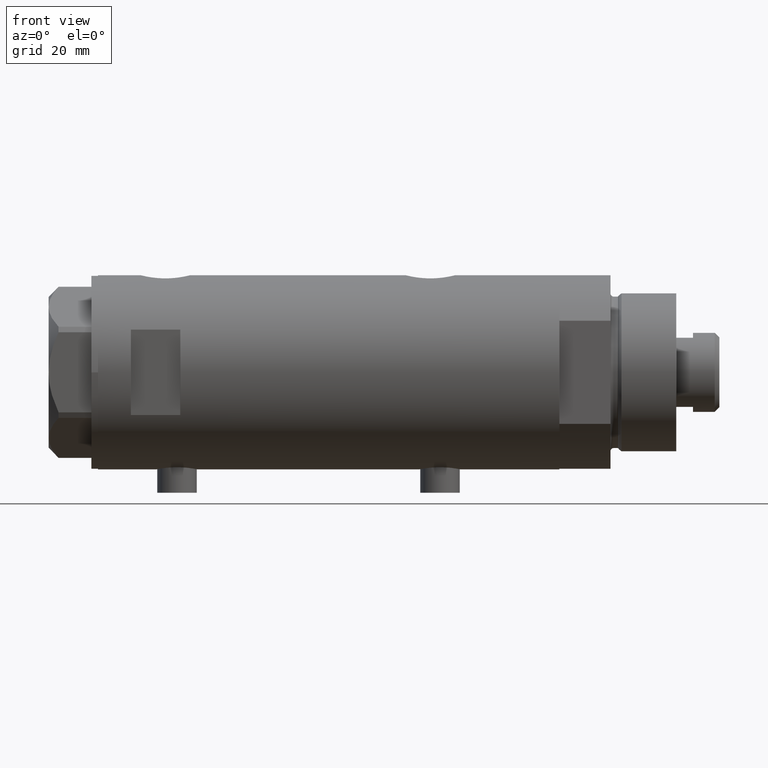
[diagram: clean part render]
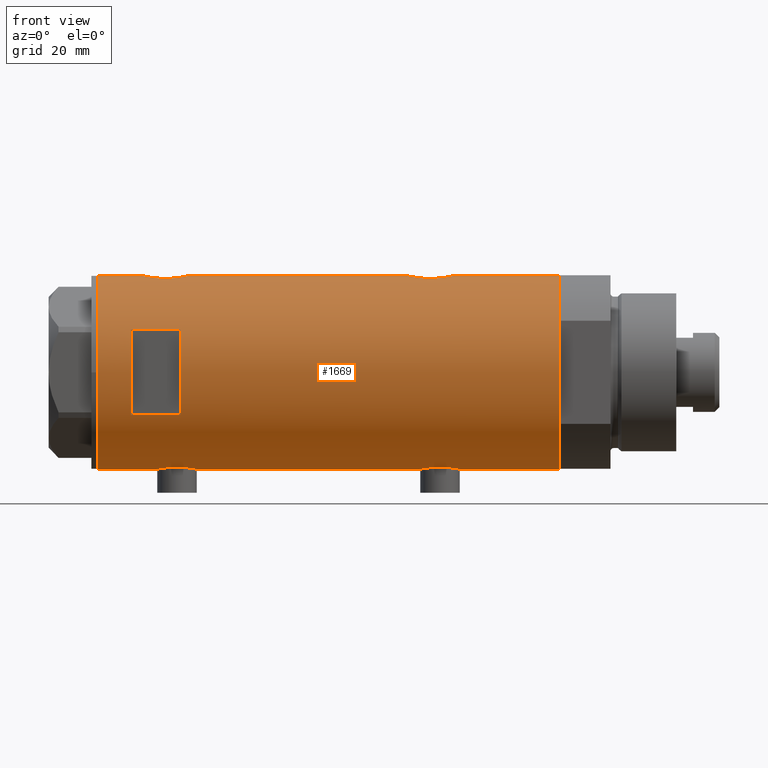
[diagram: same view with one face highlighted and labeled with its STEP entity id]
A machine part, front view. The second image highlights one B-rep face of the part: STEP entity #1669.
In plain terms, the highlighted cylindrical surface (partial cylindrical patch) has radius 29.5 mm, axis along (-1, -0, 0).
Its self-contained STEP definition (entity closure, byte-faithful):
#23 = CARTESIAN_POINT ( 'NONE',  ( 28.72151714661536204, -6.735173278284145582, 52.93640470570872480 ) ) ;
#80 = LINE ( 'NONE', #1499, #1151 ) ;
#95 = CARTESIAN_POINT ( 'NONE',  ( -29.50000000000000355, 3.612708057484692393E-15, 70.09999999999999432 ) ) ;
#108 = EDGE_CURVE ( 'NONE', #2811, #3958, #3994, .T. ) ;
#143 = CARTESIAN_POINT ( 'NONE',  ( 29.50000000000000355, -2.068661527048439545E-15, -38.39999999999999147 ) ) ;
#161 = VERTEX_POINT ( 'NONE', #2546 ) ;
#220 = FACE_BOUND ( 'NONE', #4718, .T. ) ;
#235 = DIRECTION ( 'NONE',  ( 0.000000000000000000, 0.000000000000000000, 1.000000000000000000 ) ) ;
#237 = CARTESIAN_POINT ( 'NONE',  ( 29.40378957563275009, -2.423455993307766398, 56.71449460115983499 ) ) ;
#285 = CARTESIAN_POINT ( 'NONE',  ( 29.17410189149616428, -4.377709617224021521, 43.50524172523978450 ) ) ;
#295 = CARTESIAN_POINT ( 'NONE',  ( -29.45797511864983065, -1.625450914296656890, -39.84905127530045377 ) ) ;
#307 = CARTESIAN_POINT ( 'NONE',  ( 28.72051071455671334, -6.739402597165489617, 46.27281026296244448 ) ) ;
#308 = EDGE_CURVE ( 'NONE', #4788, #461, #80, .T. ) ;
#320 = CARTESIAN_POINT ( 'NONE',  ( -29.14490888978862415, -4.565669626908225531, -29.52701820123783705 ) ) ;
#332 = CARTESIAN_POINT ( 'NONE',  ( 29.23250901027695647, -3.968959760999266617, 55.96846017287659691 ) ) ;
#341 = DIRECTION ( 'NONE',  ( 1.000000000000000000, 0.000000000000000000, 0.000000000000000000 ) ) ;
#344 = CARTESIAN_POINT ( 'NONE',  ( -29.50000000000001066, -0.4141077724969902119, -27.55000000000000071 ) ) ;
#355 = CARTESIAN_POINT ( 'NONE',  ( -29.50000000000000355, 3.612708057484692393E-15, -70.09999999999999432 ) ) ;
#359 = CARTESIAN_POINT ( 'NONE',  ( 29.14531914445117522, -4.579221598645967006, 55.55990232992807876 ) ) ;
#374 = CARTESIAN_POINT ( 'NONE',  ( -28.83260549167351883, -6.239494599049531409, -34.21615084301799214 ) ) ;
#386 = CARTESIAN_POINT ( 'NONE',  ( 29.14351131874355261, -4.576283785862462317, 43.65294675151479709 ) ) ;
#414 = CARTESIAN_POINT ( 'NONE',  ( -28.84137202824162216, -6.198846007008988579, -34.62388261123872724 ) ) ;
#426 = VECTOR ( 'NONE', #4122, 1000.000000000000000 ) ;
#461 = VERTEX_POINT ( 'NONE', #2663 ) ;
#476 = CARTESIAN_POINT ( 'NONE',  ( 28.86327882047615390, -6.097569254709687137, -26.52632909088550051 ) ) ;
#480 = DIRECTION ( 'NONE',  ( -0.000000000000000000, -0.000000000000000000, -1.000000000000000000 ) ) ;
#497 = CARTESIAN_POINT ( 'NONE',  ( 28.89374847711160399, -5.952001739005060799, -35.46983981079634418 ) ) ;
#513 = VERTEX_POINT ( 'NONE', #1012 ) ;
#515 = CARTESIAN_POINT ( 'NONE',  ( -28.96147498926091757, -5.613273026676365518, 43.32107301657420351 ) ) ;
#538 = CARTESIAN_POINT ( 'NONE',  ( -28.85437274499025762, -6.138402965889059537, 44.87243403294918664 ) ) ;
#546 = CARTESIAN_POINT ( 'NONE',  ( 29.43916859571211120, -1.954329820671501183, -38.15764479242086793 ) ) ;
#562 = CARTESIAN_POINT ( 'NONE',  ( 29.17410189149616428, -4.377709617224029515, -36.99475827476019418 ) ) ;
#580 = CARTESIAN_POINT ( 'NONE',  ( -29.50000000000000355, 3.612706708267620518E-15, 39.84999999999999432 ) ) ;
#598 = CARTESIAN_POINT ( 'NONE',  ( 29.50000000000001066, -0.4905639552620955079, 57.10000000000000142 ) ) ;
#607 = CARTESIAN_POINT ( 'NONE',  ( -29.45797511864983420, -1.625450914296655336, 40.05094872469953060 ) ) ;
#642 = CARTESIAN_POINT ( 'NONE',  ( 28.53064705443910043, -7.500145243772282200, 49.10755296708880735 ) ) ;
#649 = CYLINDRICAL_SURFACE ( 'NONE', #2430, 29.50000000000000355 ) ;
#656 = CARTESIAN_POINT ( 'NONE',  ( 28.72051071455672400, -6.739402597165488729, -34.22718973703751999 ) ) ;
#675 = CARTESIAN_POINT ( 'NONE',  ( 28.77541267587658780, -6.504036106227640168, 53.36628550135916527 ) ) ;
#682 = CARTESIAN_POINT ( 'NONE',  ( -29.43130053621386821, -2.021711243143695214, 52.01755045960180723 ) ) ;
#690 = ORIENTED_EDGE ( 'NONE', *, *, #2691, .F. ) ;
#700 = CARTESIAN_POINT ( 'NONE',  ( 29.50000000000000711, -0.4976091310423220726, 42.10000000000000142 ) ) ;
#704 = ORIENTED_EDGE ( 'NONE', *, *, #1295, .F. ) ;
#709 = CARTESIAN_POINT ( 'NONE',  ( -28.96147498926091757, -5.613273026676372623, -36.57892698342578086 ) ) ;
#719 = CARTESIAN_POINT ( 'NONE',  ( 29.50000000000000355, -1.363453657738827866E-15, 42.09999999999999432 ) ) ;
#756 = CIRCLE ( 'NONE', #2765, 29.50000000000000355 ) ;
#770 = CARTESIAN_POINT ( 'NONE',  ( 12.96148139681573319, -26.49999999999998934, 60.09999999999998721 ) ) ;
#775 = ORIENTED_EDGE ( 'NONE', *, *, #2559, .F. ) ;
#781 = CARTESIAN_POINT ( 'NONE',  ( -29.45566469296798218, -1.628675872921094170, -27.76243967371322796 ) ) ;
#793 = VERTEX_POINT ( 'NONE', #95 ) ;
#801 = DIRECTION ( 'NONE',  ( 0.000000000000000000, 0.000000000000000000, 1.000000000000000000 ) ) ;
#847 = CARTESIAN_POINT ( 'NONE',  ( 28.95619957017311208, -5.640369376407877944, -25.95060273509822579 ) ) ;
#867 = CARTESIAN_POINT ( 'NONE',  ( 0.000000000000000000, 0.000000000000000000, 70.09999999999999432 ) ) ;
#907 = CARTESIAN_POINT ( 'NONE',  ( -28.89828397447512032, -5.929977241120604425, 48.11611952241996448 ) ) ;
#917 = CARTESIAN_POINT ( 'NONE',  ( 28.72151714661536204, -6.735173278284146470, -27.56359529429124322 ) ) ;
#928 = CARTESIAN_POINT ( 'NONE',  ( -29.05872136210575007, -5.084685578900224989, 49.74009991908757655 ) ) ;
#936 = CARTESIAN_POINT ( 'NONE',  ( 28.95592074821772854, -5.641779806288297117, -35.84773495802029686 ) ) ;
#947 = CARTESIAN_POINT ( 'NONE',  ( -28.91427970886710597, -5.849862889315913250, 43.89006866871147849 ) ) ;
#970 = DIRECTION ( 'NONE',  ( 1.000000000000000000, 0.000000000000000000, 0.000000000000000000 ) ) ;
#1012 = CARTESIAN_POINT ( 'NONE',  ( -29.50000000000000355, -1.251314770453635394E-15, 52.34999999999999432 ) ) ;
#1021 = CARTESIAN_POINT ( 'NONE',  ( 28.98740664105172016, -5.478212189394663589, -36.02819516185791571 ) ) ;
#1037 = ORIENTED_EDGE ( 'NONE', *, *, #1280, .F. ) ;
#1059 = CARTESIAN_POINT ( 'NONE',  ( 28.54678862679669038, -7.438514536388029619, 50.58958274320788462 ) ) ;
#1065 = CARTESIAN_POINT ( 'NONE',  ( -29.14490888978863481, -4.565669626908227308, 50.37298179876215443 ) ) ;
#1068 = CARTESIAN_POINT ( 'NONE',  ( -28.83028160285196151, -6.250189016175733414, -33.39032996785321217 ) ) ;
#1082 = CARTESIAN_POINT ( 'NONE',  ( 28.59337635119608123, -7.258007499531542450, 51.55216225651361128 ) ) ;
#1089 = CARTESIAN_POINT ( 'NONE',  ( -29.45566469296799283, -1.628675872921102163, 52.13756032628675996 ) ) ;
#1091 = CARTESIAN_POINT ( 'NONE',  ( -28.87532468301957422, -6.038983942005352823, -35.42329367688535768 ) ) ;
#1101 = CARTESIAN_POINT ( 'NONE',  ( 28.86327882047615034, -6.097569254709688913, 53.97367090911448173 ) ) ;
#1112 = CARTESIAN_POINT ( 'NONE',  ( -28.91427970886710597, -5.849862889315918579, -36.00993133128850587 ) ) ;
#1113 = VERTEX_POINT ( 'NONE', #4699 ) ;
#1139 = DIRECTION ( 'NONE',  ( 0.000000000000000000, 0.000000000000000000, 1.000000000000000000 ) ) ;
#1150 = CARTESIAN_POINT ( 'NONE',  ( 29.31311917412635992, -3.322476152549147521, -24.17157014735704834 ) ) ;
#1151 = VECTOR ( 'NONE', #801, 1000.000000000000000 ) ;
#1200 = CARTESIAN_POINT ( 'NONE',  ( 29.08294968506023892, -4.955368226349206928, -25.24903281801533694 ) ) ;
#1242 = CARTESIAN_POINT ( 'NONE',  ( 29.48742104091791916, -0.9879539515379959225, -38.35095698353976701 ) ) ;
#1252 = VERTEX_POINT ( 'NONE', #770 ) ;
#1262 = CARTESIAN_POINT ( 'NONE',  ( 28.59279484545186989, -7.260293545345768429, -32.84406557984471675 ) ) ;
#1280 = EDGE_CURVE ( 'NONE', #4788, #3109, #3031, .T. ) ;
#1295 = EDGE_CURVE ( 'NONE', #793, #3339, #1648, .T. ) ;
#1303 = CARTESIAN_POINT ( 'NONE',  ( -29.37055817176825556, -2.766456155496576752, 40.49186392411088775 ) ) ;
#1311 = CARTESIAN_POINT ( 'NONE',  ( -29.49152014567324542, -0.8152473631539811638, -40.01035294833332046 ) ) ;
#1324 = CARTESIAN_POINT ( 'NONE',  ( -29.21108587560691205, -4.128853169727746852, 41.39032723090409860 ) ) ;
#1343 = CARTESIAN_POINT ( 'NONE',  ( 29.31311917412636348, -3.322476152549152406, 56.32842985264294100 ) ) ;
#1346 = CARTESIAN_POINT ( 'NONE',  ( 29.50000000000000355, 0.000000000000000000, 70.09999999999999432 ) ) ;
#1352 = CARTESIAN_POINT ( 'NONE',  ( -28.83909499632370199, -6.209928350489660964, 46.91617781082957350 ) ) ;
#1367 = EDGE_CURVE ( 'NONE', #3826, #2811, #4181, .T. ) ;
#1395 = CARTESIAN_POINT ( 'NONE',  ( 28.55627543367308618, -7.402134446380870259, 50.83219650318237370 ) ) ;
#1401 = ORIENTED_EDGE ( 'NONE', *, *, #108, .F. ) ;
#1404 = CARTESIAN_POINT ( 'NONE',  ( -29.41741605749266597, -2.213861184585005581, 51.94831174451368838 ) ) ;
#1406 = CARTESIAN_POINT ( 'NONE',  ( -28.85437239305167267, -6.138402996999199779, -35.02756598756702999 ) ) ;
#1417 = CARTESIAN_POINT ( 'NONE',  ( 29.40305664607911140, -2.432276947006147605, 42.48852198993412088 ) ) ;
#1427 = CIRCLE ( 'NONE', #4140, 29.50000000000000355 ) ;
#1436 = ORIENTED_EDGE ( 'NONE', *, *, #4457, .T. ) ;
#1472 = CARTESIAN_POINT ( 'NONE',  ( 28.62983003203746080, -7.114781472982439681, 47.17726941146262476 ) ) ;
#1479 = CARTESIAN_POINT ( 'NONE',  ( 0.000000000000000000, 0.000000000000000000, -70.09999999999999432 ) ) ;
#1480 = CARTESIAN_POINT ( 'NONE',  ( -29.37055817176824846, -2.766456155496577640, -39.40813607588911083 ) ) ;
#1499 = CARTESIAN_POINT ( 'NONE',  ( 29.50000000000000355, 0.000000000000000000, -70.09999999999999432 ) ) ;
#1504 = CARTESIAN_POINT ( 'NONE',  ( -28.89828397447512032, -5.929977241120605314, -31.78388047758002344 ) ) ;
#1516 = CARTESIAN_POINT ( 'NONE',  ( 29.48775985681159284, -0.9798361908152550814, -23.44769556118673037 ) ) ;
#1566 = CARTESIAN_POINT ( 'NONE',  ( 29.50000000000000355, -8.867894669064240341E-21, -23.39999999999999147 ) ) ;
#1616 = CARTESIAN_POINT ( 'NONE',  ( 28.53399451186755442, -7.487442594623181513, -30.40102514498886777 ) ) ;
#1626 = CARTESIAN_POINT ( 'NONE',  ( -29.07948744859177026, -4.968520850090763830, 42.28663632621106672 ) ) ;
#1645 = CARTESIAN_POINT ( 'NONE',  ( -28.99772237063717739, -5.425436006677730738, 49.22962674552640294 ) ) ;
#1648 = CIRCLE ( 'NONE', #2741, 29.50000000000000355 ) ;
#1664 = VECTOR ( 'NONE', #4336, 1000.000000000000000 ) ;
#1669 = ADVANCED_FACE ( 'NONE', ( #3515, #220 ), #649, .T. ) ;
#1675 = CARTESIAN_POINT ( 'NONE',  ( -29.49152014567325253, -0.8152473631539810528, 39.88964705166667812 ) ) ;
#1701 = DIRECTION ( 'NONE',  ( -0.000000000000000000, 0.000000000000000000, -1.000000000000000000 ) ) ;
#1715 = CARTESIAN_POINT ( 'NONE',  ( 29.33743940633121028, -3.100990836771690073, 56.43327512439066140 ) ) ;
#1721 = CARTESIAN_POINT ( 'NONE',  ( -29.33428005013170292, -3.127775714777720761, 40.68506796127406488 ) ) ;
#1746 = CARTESIAN_POINT ( 'NONE',  ( 0.000000000000000000, 0.000000000000000000, -70.09999999999999432 ) ) ;
#1768 = CARTESIAN_POINT ( 'NONE',  ( 29.08168479815708451, -4.954011967599717181, 43.96372631484729965 ) ) ;
#1789 = CARTESIAN_POINT ( 'NONE',  ( 29.08294968506023537, -4.955368226349206040, 55.25096718198464885 ) ) ;
#1800 = CARTESIAN_POINT ( 'NONE',  ( -29.08006251441182854, -4.961575945539725474, -29.99381497947475239 ) ) ;
#1803 = ORIENTED_EDGE ( 'NONE', *, *, #2795, .T. ) ;
#1808 = LINE ( 'NONE', #355, #3156 ) ;
#1812 = CARTESIAN_POINT ( 'NONE',  ( 28.53399451186755442, -7.487442594623181513, 50.09897485501112868 ) ) ;
#1821 = CARTESIAN_POINT ( 'NONE',  ( -29.46613381094000417, -1.427468570127970349, 52.18827540540396370 ) ) ;
#1827 = CARTESIAN_POINT ( 'NONE',  ( -29.33479068874800078, -3.136645782783866743, -28.37844745385530842 ) ) ;
#1848 = CARTESIAN_POINT ( 'NONE',  ( -29.37136442049237317, -2.777615426151012201, 51.71365112622115845 ) ) ;
#1850 = CARTESIAN_POINT ( 'NONE',  ( -28.96072448608914485, -5.617106371651691354, -31.02917268339557211 ) ) ;
#1864 = CARTESIAN_POINT ( 'NONE',  ( 28.95592074821772854, -5.641779806288289123, 44.65226504197967472 ) ) ;
#1883 = CARTESIAN_POINT ( 'NONE',  ( 29.50000000000000711, -0.4905639552620933430, -23.40000000000000213 ) ) ;
#1889 = VERTEX_POINT ( 'NONE', #3821 ) ;
#1896 = CARTESIAN_POINT ( 'NONE',  ( -28.83909499632370199, -6.209928350489661852, -32.98382218917040376 ) ) ;
#1917 = EDGE_CURVE ( 'NONE', #1113, #1889, #3823, .T. ) ;
#1933 = B_SPLINE_CURVE_WITH_KNOTS ( 'NONE', 3,
 ( #2440, #598, #2082, #3558, #237, #1715, #1343, #3937, #332, #359, #1789, #2585, #3271, #4327, #1101, #675, #23, #2153, #1082, #1395, #1059, #1812, #2956, #642, #3676, #2199, #1472, #307, #4742, #3606, #4350, #1864, #4721, #3341, #1768, #386, #285, #3633, #2487, #1417, #3295, #2935, #700, #719 ),
 .UNSPECIFIED., .F., .F.,
 ( 4, 2, 2, 2, 2, 2, 2, 2, 2, 2, 2, 2, 2, 2, 2, 2, 2, 2, 2, 2, 2, 4 ),
 ( 0.02354540741801906811, 0.02501659793198015777, 0.02648778844594124743, 0.02722338370292179052, 0.02795897895990233362, 0.02943016947386341287, 0.03016576473084396290, 0.03090135998782451293, 0.03237255050178562688, 0.03384374101574673388, 0.03457933627272730126, 0.03531493152970786864, 0.03678612204366901728, 0.03825731255763017286, 0.03972850307159132843, 0.04046409832857190969, 0.04119969358555249095, 0.04193528884253308608, 0.04267088409951366734, 0.04414207461347482986, 0.04561326512743600625, 0.04708445564139716877 ),
 .UNSPECIFIED. ) ;
#1981 = CARTESIAN_POINT ( 'NONE',  ( 28.55627543367308618, -7.402134446380870259, -29.66780349681762274 ) ) ;
#2027 = DIRECTION ( 'NONE',  ( 0.000000000000000000, 0.000000000000000000, 1.000000000000000000 ) ) ;
#2028 = LINE ( 'NONE', #4202, #3678 ) ;
#2043 = CARTESIAN_POINT ( 'NONE',  ( -29.50000000000000355, 3.612706708236066082E-15, -40.05000000000000426 ) ) ;
#2047 = CARTESIAN_POINT ( 'NONE',  ( 28.77541267587658069, -6.504036106227637504, -27.13371449864084539 ) ) ;
#2065 = CARTESIAN_POINT ( 'NONE',  ( -29.50000000000000355, 3.612708057484692393E-15, -70.09999999999999432 ) ) ;
#2082 = CARTESIAN_POINT ( 'NONE',  ( 29.48775985681159284, -0.9798361908152568578, 57.05230443881323765 ) ) ;
#2094 = EDGE_CURVE ( 'NONE', #2871, #461, #1933, .T. ) ;
#2153 = CARTESIAN_POINT ( 'NONE',  ( 28.62986945670068550, -7.114680680403729696, 52.02393776006690729 ) ) ;
#2163 = CARTESIAN_POINT ( 'NONE',  ( -28.83034328164762528, -6.249904501012243152, -34.00914539564058714 ) ) ;
#2186 = CARTESIAN_POINT ( 'NONE',  ( -29.33479068874800788, -3.136645782783861858, 51.52155254614470437 ) ) ;
#2188 = CARTESIAN_POINT ( 'NONE',  ( -29.37136442049237317, -2.777615426151016642, -28.18634887377885079 ) ) ;
#2199 = CARTESIAN_POINT ( 'NONE',  ( 28.59279484545186989, -7.260293545345763100, 47.65593442015525483 ) ) ;
#2208 = CARTESIAN_POINT ( 'NONE',  ( 29.50000000000000355, -8.867894669064240341E-21, 57.09999999999999432 ) ) ;
#2212 = CARTESIAN_POINT ( 'NONE',  ( -29.25427426731712188, -3.815048240656441880, -38.76740768153335637 ) ) ;
#2245 = EDGE_CURVE ( 'NONE', #2871, #3339, #2028, .T. ) ;
#2261 = CARTESIAN_POINT ( 'NONE',  ( -29.50000000000000355, 3.612708057484692393E-15, -70.09999999999999432 ) ) ;
#2272 = CARTESIAN_POINT ( 'NONE',  ( 29.43922820968271381, -1.954457150219035322, -23.64210652754224284 ) ) ;
#2277 = VERTEX_POINT ( 'NONE', #3169 ) ;
#2323 = CARTESIAN_POINT ( 'NONE',  ( 28.89374408016309914, -5.952042782108792451, -26.33015462974034193 ) ) ;
#2324 = VECTOR ( 'NONE', #3545, 1000.000000000000000 ) ;
#2342 = CARTESIAN_POINT ( 'NONE',  ( 28.54347630091234223, -7.451827970232788978, -31.88056781783958726 ) ) ;
#2355 = CARTESIAN_POINT ( 'NONE',  ( -29.31475612970062983, -3.305202271067057218, 40.79152131156142502 ) ) ;
#2366 = CARTESIAN_POINT ( 'NONE',  ( 28.53064705443910754, -7.500145243772285752, -31.39244703291117133 ) ) ;
#2383 = CARTESIAN_POINT ( 'NONE',  ( -28.96072448608914485, -5.617106371651694907, 48.87082731660439805 ) ) ;
#2391 = CARTESIAN_POINT ( 'NONE',  ( 28.77424839213764329, -6.509286280845839379, -34.65781251605954338 ) ) ;
#2403 = CARTESIAN_POINT ( 'NONE',  ( -29.08006251441183210, -4.961575945539727250, 49.90618502052525685 ) ) ;
#2406 = ORIENTED_EDGE ( 'NONE', *, *, #1367, .F. ) ;
#2410 = EDGE_CURVE ( 'NONE', #2277, #1113, #4531, .T. ) ;
#2411 = EDGE_LOOP ( 'NONE', ( #775, #1436, #1803, #1037, #3718, #3157, #4131, #704, #4250, #2728, #1401, #2406 ) ) ;
#2412 = CARTESIAN_POINT ( 'NONE',  ( 29.31438578683260232, -3.335040812377227049, -37.63547276843772238 ) ) ;
#2424 = CARTESIAN_POINT ( 'NONE',  ( -28.83034328164762172, -6.249904501012241376, 45.89085460435939723 ) ) ;
#2430 = AXIS2_PLACEMENT_3D ( 'NONE', #1746, #3920, #3496 ) ;
#2440 = CARTESIAN_POINT ( 'NONE',  ( 29.50000000000000355, -8.867894669064240341E-21, 57.09999999999999432 ) ) ;
#2487 = CARTESIAN_POINT ( 'NONE',  ( 29.31438578683259522, -3.335040812377227937, 42.86452723156225630 ) ) ;
#2524 = CARTESIAN_POINT ( 'NONE',  ( -29.49128673965871883, -0.8227026017531489099, -27.59075558927904126 ) ) ;
#2546 = CARTESIAN_POINT ( 'NONE',  ( -29.50000000000000355, 3.612708057484692393E-15, -70.09999999999999432 ) ) ;
#2550 = CARTESIAN_POINT ( 'NONE',  ( -29.33428005013169582, -3.127775714777724758, -39.21493203872592659 ) ) ;
#2556 = LINE ( 'NONE', #2261, #426 ) ;
#2559 = EDGE_CURVE ( 'NONE', #161, #3826, #2556, .T. ) ;
#2585 = CARTESIAN_POINT ( 'NONE',  ( 28.98816846638396072, -5.474212100855873508, 54.73252159883303136 ) ) ;
#2618 = CARTESIAN_POINT ( 'NONE',  ( -12.96148139681573319, -26.49999999999999645, -70.09999999999999432 ) ) ;
#2626 = CARTESIAN_POINT ( 'NONE',  ( -29.05872136210574297, -5.084685578900223213, -30.15990008091241137 ) ) ;
#2663 = CARTESIAN_POINT ( 'NONE',  ( 29.50000000000000355, -1.363453657738827866E-15, 42.09999999999999432 ) ) ;
#2674 = VECTOR ( 'NONE', #480, 1000.000000000000000 ) ;
#2685 = CARTESIAN_POINT ( 'NONE',  ( 28.98816846638396427, -5.474212100855875285, -25.76747840116693666 ) ) ;
#2691 = EDGE_CURVE ( 'NONE', #1252, #2277, #1427, .T. ) ;
#2708 = CARTESIAN_POINT ( 'NONE',  ( 29.08168479815707386, -4.954011967599716293, -36.53627368515268614 ) ) ;
#2728 = ORIENTED_EDGE ( 'NONE', *, *, #2738, .F. ) ;
#2729 = CARTESIAN_POINT ( 'NONE',  ( 29.05028789344174456, -5.134328181356795362, -36.37246457606265437 ) ) ;
#2738 = EDGE_CURVE ( 'NONE', #3958, #513, #4538, .T. ) ;
#2741 = AXIS2_PLACEMENT_3D ( 'NONE', #867, #2027, #3505 ) ;
#2765 = AXIS2_PLACEMENT_3D ( 'NONE', #1479, #1139, #341 ) ;
#2792 = CARTESIAN_POINT ( 'NONE',  ( -29.12379578281188230, -4.705261494361425711, 41.96612042279722488 ) ) ;
#2795 = EDGE_CURVE ( 'NONE', #4675, #3109, #2864, .T. ) ;
#2811 = VERTEX_POINT ( 'NONE', #4749 ) ;
#2814 = CARTESIAN_POINT ( 'NONE',  ( -28.89999183068148625, -5.919812056825914937, 44.08499761164583219 ) ) ;
#2824 = DIRECTION ( 'NONE',  ( 0.000000000000000000, 0.000000000000000000, 1.000000000000000000 ) ) ;
#2864 = LINE ( 'NONE', #3684, #1664 ) ;
#2867 = CARTESIAN_POINT ( 'NONE',  ( 28.86290657878786448, -6.099358034152092323, -35.27130670042605232 ) ) ;
#2871 = VERTEX_POINT ( 'NONE', #2208 ) ;
#2889 = CARTESIAN_POINT ( 'NONE',  ( -28.87288655002253890, -6.050870399762843022, -32.18249459278194990 ) ) ;
#2935 = CARTESIAN_POINT ( 'NONE',  ( 29.48742104091792982, -0.9879539515379943682, 42.14904301646024720 ) ) ;
#2944 = CARTESIAN_POINT ( 'NONE',  ( -29.31475612970063338, -3.305202271067065212, -39.10847868843855224 ) ) ;
#2956 = CARTESIAN_POINT ( 'NONE',  ( 28.53070445389874976, -7.499926890973428684, 49.84953420512916722 ) ) ;
#3002 = CARTESIAN_POINT ( 'NONE',  ( 29.40378957563275009, -2.423455993307769063, -23.78550539884014725 ) ) ;
#3031 = B_SPLINE_CURVE_WITH_KNOTS ( 'NONE', 3,
 ( #1566, #1883, #1516, #2272, #3002, #4478, #1150, #3049, #4109, #4524, #1200, #2685, #847, #2323, #476, #2047, #917, #4620, #3878, #1981, #4251, #1616, #4339, #2366, #2342, #1262, #3466, #656, #2391, #2867, #497, #936, #1021, #2729, #2708, #3861, #562, #3839, #2412, #3528, #546, #1242, #3098, #143 ),
 .UNSPECIFIED., .F., .F.,
 ( 4, 2, 2, 2, 2, 2, 2, 2, 2, 2, 2, 2, 2, 2, 2, 2, 2, 2, 2, 2, 2, 4 ),
 ( 0.02354540741801906117, 0.02501659793198018553, 0.02648778844594131335, 0.02722338370292187726, 0.02795897895990244117, 0.02943016947386356552, 0.03016576473084412943, 0.03090135998782469334, 0.03237255050178582116, 0.03384374101574694205, 0.03457933627272750943, 0.03531493152970806987, 0.03678612204366919769, 0.03825731255763031857, 0.03972850307159145333, 0.04046409832857202071, 0.04119969358555258809, 0.04193528884253315547, 0.04267088409951372979, 0.04414207461347487149, 0.04561326512743601319, 0.04708445564139715489 ),
 .UNSPECIFIED. ) ;
#3049 = CARTESIAN_POINT ( 'NONE',  ( 29.26065241255351879, -3.756597382275439045, -24.40395565180809712 ) ) ;
#3098 = CARTESIAN_POINT ( 'NONE',  ( 29.50000000000000711, -0.4976091310423219616, -38.39999999999999858 ) ) ;
#3109 = VERTEX_POINT ( 'NONE', #4191 ) ;
#3110 = CARTESIAN_POINT ( 'NONE',  ( -28.83260549167351527, -6.239494599049529633, 45.68384915698199222 ) ) ;
#3132 = CARTESIAN_POINT ( 'NONE',  ( -28.84137202824161861, -6.198846007008985914, 45.27611738876124292 ) ) ;
#3156 = VECTOR ( 'NONE', #4373, 1000.000000000000000 ) ;
#3157 = ORIENTED_EDGE ( 'NONE', *, *, #2094, .F. ) ;
#3169 = CARTESIAN_POINT ( 'NONE',  ( -12.96148139681573319, -26.49999999999998934, 60.09999999999998721 ) ) ;
#3181 = CARTESIAN_POINT ( 'NONE',  ( 0.000000000000000000, 0.000000000000000000, 60.09999999999998721 ) ) ;
#3203 = CARTESIAN_POINT ( 'NONE',  ( -29.25427426731712544, -3.815048240656436107, 41.13259231846663511 ) ) ;
#3260 = CARTESIAN_POINT ( 'NONE',  ( -29.43333839972901700, -2.017691896334584900, -39.72935989047841332 ) ) ;
#3271 = CARTESIAN_POINT ( 'NONE',  ( 28.95619957017310497, -5.640369376407877056, 54.54939726490174934 ) ) ;
#3282 = ORIENTED_EDGE ( 'NONE', *, *, #1917, .F. ) ;
#3283 = CARTESIAN_POINT ( 'NONE',  ( -29.21016169868139656, -4.135295259288787939, -29.09609911913490876 ) ) ;
#3295 = CARTESIAN_POINT ( 'NONE',  ( 29.43916859571211120, -1.954329820671499407, 42.34235520757911075 ) ) ;
#3303 = CARTESIAN_POINT ( 'NONE',  ( -29.25361239466581154, -3.820294933898098044, 51.06357989714039292 ) ) ;
#3307 = CARTESIAN_POINT ( 'NONE',  ( -29.50000000000000355, 7.333735512235174214E-18, -27.54999999999999361 ) ) ;
#3339 = VERTEX_POINT ( 'NONE', #1346 ) ;
#3341 = CARTESIAN_POINT ( 'NONE',  ( 29.05028789344173745, -5.134328181356786480, 44.12753542393733852 ) ) ;
#3375 = CARTESIAN_POINT ( 'NONE',  ( -29.21108587560690495, -4.128853169727752181, -38.50967276909590709 ) ) ;
#3466 = CARTESIAN_POINT ( 'NONE',  ( 28.62983003203746080, -7.114781472982439681, -33.32273058853736813 ) ) ;
#3473 = CARTESIAN_POINT ( 'NONE',  ( 0.000000000000000000, 0.000000000000000000, 45.09999999999998721 ) ) ;
#3496 = DIRECTION ( 'NONE',  ( 1.000000000000000000, 0.000000000000000000, 0.000000000000000000 ) ) ;
#3505 = DIRECTION ( 'NONE',  ( 1.000000000000000000, 0.000000000000000000, 0.000000000000000000 ) ) ;
#3515 = FACE_OUTER_BOUND ( 'NONE', #2411, .T. ) ;
#3528 = CARTESIAN_POINT ( 'NONE',  ( 29.40305664607912917, -2.432276947006150714, -38.01147801006585780 ) ) ;
#3545 = DIRECTION ( 'NONE',  ( 0.000000000000000000, 0.000000000000000000, 1.000000000000000000 ) ) ;
#3546 = CARTESIAN_POINT ( 'NONE',  ( -29.50000000000000711, -0.4084468586314294880, 39.85000000000000853 ) ) ;
#3549 = CARTESIAN_POINT ( 'NONE',  ( -29.50000000000000355, 3.612706708267620518E-15, 39.84999999999999432 ) ) ;
#3556 = LINE ( 'NONE', #4172, #3695 ) ;
#3558 = CARTESIAN_POINT ( 'NONE',  ( 29.43922820968270671, -1.954457150219038208, 56.85789347245773229 ) ) ;
#3587 = CARTESIAN_POINT ( 'NONE',  ( -29.49999999999999645, -0.4141077724969866036, 52.34999999999998721 ) ) ;
#3606 = CARTESIAN_POINT ( 'NONE',  ( 28.86290657878785737, -6.099358034152089658, 45.22869329957392637 ) ) ;
#3630 = CARTESIAN_POINT ( 'NONE',  ( 29.50000000000000355, -8.867894669064240341E-21, -23.39999999999999147 ) ) ;
#3633 = CARTESIAN_POINT ( 'NONE',  ( 29.26166309680877475, -3.765013078516705303, 43.09489767946936922 ) ) ;
#3640 = CARTESIAN_POINT ( 'NONE',  ( -29.12311479234994849, -4.702282052053736727, 50.22223528886483734 ) ) ;
#3642 = CARTESIAN_POINT ( 'NONE',  ( -29.12379578281188941, -4.705261494361431929, -37.93387957720273818 ) ) ;
#3663 = CARTESIAN_POINT ( 'NONE',  ( -29.41741605749266597, -2.213861184585011355, -27.95168825548629243 ) ) ;
#3676 = CARTESIAN_POINT ( 'NONE',  ( 28.54347630091233867, -7.451827970232786313, 48.61943218216036655 ) ) ;
#3678 = VECTOR ( 'NONE', #2824, 1000.000000000000000 ) ;
#3684 = CARTESIAN_POINT ( 'NONE',  ( 29.50000000000000355, 0.000000000000000000, -70.09999999999999432 ) ) ;
#3689 = CARTESIAN_POINT ( 'NONE',  ( -28.89999183068148270, -5.919812056825918489, -35.81500238835415928 ) ) ;
#3695 = VECTOR ( 'NONE', #235, 1000.000000000000000 ) ;
#3718 = ORIENTED_EDGE ( 'NONE', *, *, #308, .T. ) ;
#3735 = CARTESIAN_POINT ( 'NONE',  ( -29.12311479234994138, -4.702282052053733175, -29.67776471113516479 ) ) ;
#3821 = CARTESIAN_POINT ( 'NONE',  ( 12.96148139681573319, -26.49999999999998934, 45.09999999999998721 ) ) ;
#3823 = CIRCLE ( 'NONE', #4050, 29.50000000000000355 ) ;
#3826 = VERTEX_POINT ( 'NONE', #2043 ) ;
#3830 = CARTESIAN_POINT ( 'NONE',  ( -28.87288655002253179, -6.050870399762844798, 47.71750540721806289 ) ) ;
#3839 = CARTESIAN_POINT ( 'NONE',  ( 29.26166309680877831, -3.765013078516714629, -37.40510232053061657 ) ) ;
#3861 = CARTESIAN_POINT ( 'NONE',  ( 29.14351131874356682, -4.576283785862464981, -36.84705324848519581 ) ) ;
#3878 = CARTESIAN_POINT ( 'NONE',  ( 28.59337635119608123, -7.258007499531540674, -28.94783774348637806 ) ) ;
#3920 = DIRECTION ( 'NONE',  ( 0.000000000000000000, 0.000000000000000000, 1.000000000000000000 ) ) ;
#3937 = CARTESIAN_POINT ( 'NONE',  ( 29.26065241255352589, -3.756597382275444819, 56.09604434819189578 ) ) ;
#3958 = VERTEX_POINT ( 'NONE', #3549 ) ;
#3994 = LINE ( 'NONE', #2065, #2324 ) ;
#4023 = CARTESIAN_POINT ( 'NONE',  ( -28.99856997507319178, -5.420860550814445844, -36.93723012145799345 ) ) ;
#4043 = CARTESIAN_POINT ( 'NONE',  ( -29.25361239466581154, -3.820294933898102485, -28.83642010285960211 ) ) ;
#4050 = AXIS2_PLACEMENT_3D ( 'NONE', #3473, #4560, #4115 ) ;
#4097 = CARTESIAN_POINT ( 'NONE',  ( -29.07948744859177026, -4.968520850090774488, -37.61336367378891055 ) ) ;
#4109 = CARTESIAN_POINT ( 'NONE',  ( 29.23250901027695647, -3.968959760999265729, -24.53153982712338532 ) ) ;
#4115 = DIRECTION ( 'NONE',  ( -1.000000000000000000, 0.000000000000000000, 0.000000000000000000 ) ) ;
#4122 = DIRECTION ( 'NONE',  ( 0.000000000000000000, 0.000000000000000000, 1.000000000000000000 ) ) ;
#4131 = ORIENTED_EDGE ( 'NONE', *, *, #2245, .T. ) ;
#4140 = AXIS2_PLACEMENT_3D ( 'NONE', #3181, #1701, #970 ) ;
#4172 = CARTESIAN_POINT ( 'NONE',  ( 12.96148139681573319, -26.49999999999999645, -70.09999999999999432 ) ) ;
#4181 = B_SPLINE_CURVE_WITH_KNOTS ( 'NONE', 3,
 ( #4593, #4643, #1311, #295, #3260, #4730, #1480, #2550, #2944, #2212, #3375, #3642, #4097, #4023, #709, #1112, #3689, #1091, #1406, #414, #374, #2163, #1068, #1896, #2889, #1504, #1850, #4360, #2626, #1800, #3735, #320, #3283, #4043, #1827, #2188, #3663, #4414, #781, #4754, #2524, #344, #3307 ),
 .UNSPECIFIED., .F., .F.,
 ( 4, 2, 2, 2, 2, 2, 2, 2, 2, 1, 2, 2, 2, 2, 2, 2, 2, 2, 2, 2, 2, 4 ),
 ( 0.01959598605283711936, 0.02082041500883363358, 0.02204484396483014433, 0.02265705844282839970, 0.02326927292082665161, 0.02449370187682316583, 0.02571813083281968351, 0.02694255978881619773, 0.02755477426681446698, 0.02816698874481273623, 0.02877920322281100202, 0.02939141770080926780, 0.03061584665680580630, 0.03184027561280233787, 0.03306470456879888331, 0.03367691904679715603, 0.03428913352479542875, 0.03551356248079198807, 0.03673799143678854046, 0.03735020591478681318, 0.03796242039278509284, 0.03918684934878164522 ),
 .UNSPECIFIED. ) ;
#4191 = CARTESIAN_POINT ( 'NONE',  ( 29.50000000000000355, -2.068661527048439545E-15, -38.39999999999999147 ) ) ;
#4202 = CARTESIAN_POINT ( 'NONE',  ( 29.50000000000000355, 0.000000000000000000, -70.09999999999999432 ) ) ;
#4243 = CARTESIAN_POINT ( 'NONE',  ( -29.38738983524999782, -2.582042051636494584, 40.40464828404620334 ) ) ;
#4250 = ORIENTED_EDGE ( 'NONE', *, *, #4750, .F. ) ;
#4251 = CARTESIAN_POINT ( 'NONE',  ( 28.54678862679669038, -7.438514536388029619, -29.91041725679210472 ) ) ;
#4263 = CARTESIAN_POINT ( 'NONE',  ( -28.99856997507320244, -5.420860550814435186, 42.96276987854199092 ) ) ;
#4285 = CARTESIAN_POINT ( 'NONE',  ( -28.83028160285195796, -6.250189016175734302, 46.50967003214677220 ) ) ;
#4327 = CARTESIAN_POINT ( 'NONE',  ( 28.89374408016308848, -5.952042782108791563, 54.16984537025963675 ) ) ;
#4336 = DIRECTION ( 'NONE',  ( 0.000000000000000000, 0.000000000000000000, 1.000000000000000000 ) ) ;
#4339 = CARTESIAN_POINT ( 'NONE',  ( 28.53070445389874621, -7.499926890973427795, -30.65046579487083278 ) ) ;
#4350 = CARTESIAN_POINT ( 'NONE',  ( 28.89374847711160399, -5.952001739005051917, 45.03016018920362740 ) ) ;
#4360 = CARTESIAN_POINT ( 'NONE',  ( -28.99772237063717739, -5.425436006677728962, -30.67037325447358143 ) ) ;
#4373 = DIRECTION ( 'NONE',  ( 0.000000000000000000, 0.000000000000000000, 1.000000000000000000 ) ) ;
#4401 = ORIENTED_EDGE ( 'NONE', *, *, #2410, .F. ) ;
#4411 = CARTESIAN_POINT ( 'NONE',  ( -29.21016169868140011, -4.135295259288787051, 50.80390088086508626 ) ) ;
#4414 = CARTESIAN_POINT ( 'NONE',  ( -29.43130053621387532, -2.021711243143688552, -27.88244954039818779 ) ) ;
#4457 = EDGE_CURVE ( 'NONE', #161, #4675, #756, .T. ) ;
#4478 = CARTESIAN_POINT ( 'NONE',  ( 29.33743940633120673, -3.100990836771689629, -24.06672487560934925 ) ) ;
#4524 = CARTESIAN_POINT ( 'NONE',  ( 29.14531914445118943, -4.579221598645966118, -24.94009767007192480 ) ) ;
#4531 = LINE ( 'NONE', #2618, #2674 ) ;
#4538 = B_SPLINE_CURVE_WITH_KNOTS ( 'NONE', 3,
 ( #580, #3546, #1675, #607, #4655, #4243, #1303, #1721, #2355, #3203, #1324, #2792, #1626, #4263, #515, #947, #2814, #4678, #538, #3132, #3110, #2424, #4285, #1352, #3830, #907, #2383, #1645, #928, #2403, #3640, #1065, #4411, #3303, #2186, #1848, #1404, #682, #1089, #1821, #4728, #3587, #4782 ),
 .UNSPECIFIED., .F., .F.,
 ( 4, 2, 2, 2, 2, 2, 2, 2, 2, 1, 2, 2, 2, 2, 2, 2, 2, 2, 2, 2, 2, 4 ),
 ( 0.01959598605283711242, 0.02082041500883366134, 0.02204484396483021025, 0.02265705844282848644, 0.02326927292082675916, 0.02449370187682329766, 0.02571813083281983617, 0.02694255978881637467, 0.02755477426681463352, 0.02816698874481289236, 0.02877920322281115467, 0.02939141770080941352, 0.03061584665680593120, 0.03184027561280244889, 0.03306470456879896658, 0.03367691904679723236, 0.03428913352479548426, 0.03551356248079202277, 0.03673799143678855433, 0.03735020591478682705, 0.03796242039278509284, 0.03918684934878162440 ),
 .UNSPECIFIED. ) ;
#4560 = DIRECTION ( 'NONE',  ( 0.000000000000000000, 0.000000000000000000, 1.000000000000000000 ) ) ;
#4575 = EDGE_CURVE ( 'NONE', #1889, #1252, #3556, .T. ) ;
#4593 = CARTESIAN_POINT ( 'NONE',  ( -29.50000000000000355, 3.612706708236066082E-15, -40.05000000000000426 ) ) ;
#4620 = CARTESIAN_POINT ( 'NONE',  ( 28.62986945670068195, -7.114680680403731472, -28.47606223993307850 ) ) ;
#4643 = CARTESIAN_POINT ( 'NONE',  ( -29.50000000000001421, -0.4084468586314303207, -40.05000000000001847 ) ) ;
#4647 = CARTESIAN_POINT ( 'NONE',  ( 29.50000000000000355, 0.000000000000000000, -70.09999999999999432 ) ) ;
#4655 = CARTESIAN_POINT ( 'NONE',  ( -29.43333839972901345, -2.017691896334574686, 40.17064010952159236 ) ) ;
#4675 = VERTEX_POINT ( 'NONE', #4647 ) ;
#4678 = CARTESIAN_POINT ( 'NONE',  ( -28.87532468301957067, -6.038983942005349270, 44.47670632311462668 ) ) ;
#4699 = CARTESIAN_POINT ( 'NONE',  ( -12.96148139681573319, -26.49999999999998934, 45.09999999999998721 ) ) ;
#4718 = EDGE_LOOP ( 'NONE', ( #3282, #4401, #690, #4752 ) ) ;
#4721 = CARTESIAN_POINT ( 'NONE',  ( 28.98740664105171305, -5.478212189394655596, 44.47180483814204877 ) ) ;
#4728 = CARTESIAN_POINT ( 'NONE',  ( -29.49128673965871172, -0.8227026017531495761, 52.30924441072095021 ) ) ;
#4730 = CARTESIAN_POINT ( 'NONE',  ( -29.38738983525000492, -2.582042051636506130, -39.49535171595380234 ) ) ;
#4742 = CARTESIAN_POINT ( 'NONE',  ( 28.77424839213763264, -6.509286280845835826, 45.84218748394042109 ) ) ;
#4749 = CARTESIAN_POINT ( 'NONE',  ( -29.50000000000000355, 7.333735512235174214E-18, -27.54999999999999361 ) ) ;
#4750 = EDGE_CURVE ( 'NONE', #513, #793, #1808, .T. ) ;
#4752 = ORIENTED_EDGE ( 'NONE', *, *, #4575, .F. ) ;
#4754 = CARTESIAN_POINT ( 'NONE',  ( -29.46613381094001483, -1.427468570127968350, -27.71172459459601001 ) ) ;
#4782 = CARTESIAN_POINT ( 'NONE',  ( -29.50000000000000355, -1.251314770453635394E-15, 52.34999999999999432 ) ) ;
#4788 = VERTEX_POINT ( 'NONE', #3630 ) ;